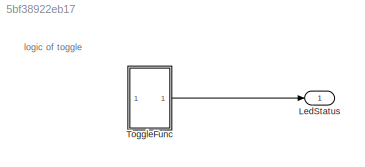
MODEL slx_5bf38922eb17
KIND model
CONFIG AbsTol = auto
CONFIG EnableMultiTasking = off
CONFIG FixedStep = auto
CONFIG MaxStep = 1e-3
CONFIG MinStep = auto
CONFIG RelTol = 1e-3
CONFIG SampleTimeConstraint = Unconstrained
CONFIG SolverName = VariableStepDiscrete
CONFIG StartTime = 0.0
CONFIG StopTime = 10.0
BLOCK [Outport] LedStatus
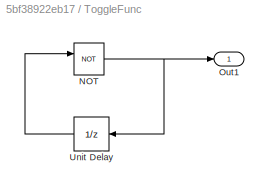
BLOCK [SubSystem] ToggleFunc
  TreatAsAtomicUnit = on
BLOCK [Logic] ToggleFunc/NOT
  AllPortsSameDT = off
  IconShape = distinctive
  Operator = NOT
  OutDataTypeStr = boolean
BLOCK [Outport] ToggleFunc/Out1
BLOCK [UnitDelay] ToggleFunc/Unit Delay
  HasFrameUpgradeWarning = on
  NameLocation = top
  SampleTime = -1
ANNOTATION (root): logic of toggle
NET ToggleFunc/NOT:1 -> ToggleFunc/Out1:1, ToggleFunc/Unit Delay:1
LINE ToggleFunc/Unit Delay:1 -> ToggleFunc/NOT:1
LINE ToggleFunc:1 -> LedStatus:1
note: NET lines group one-source signal fan-out (src -> all destinations, sorted); 1:1 wires keep LINE
